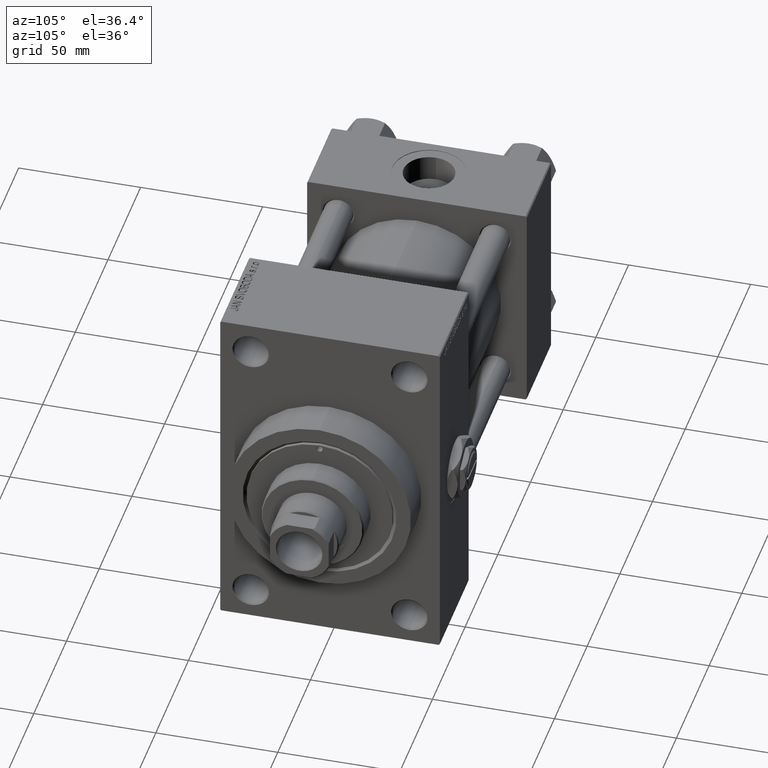
[diagram: clean part render]
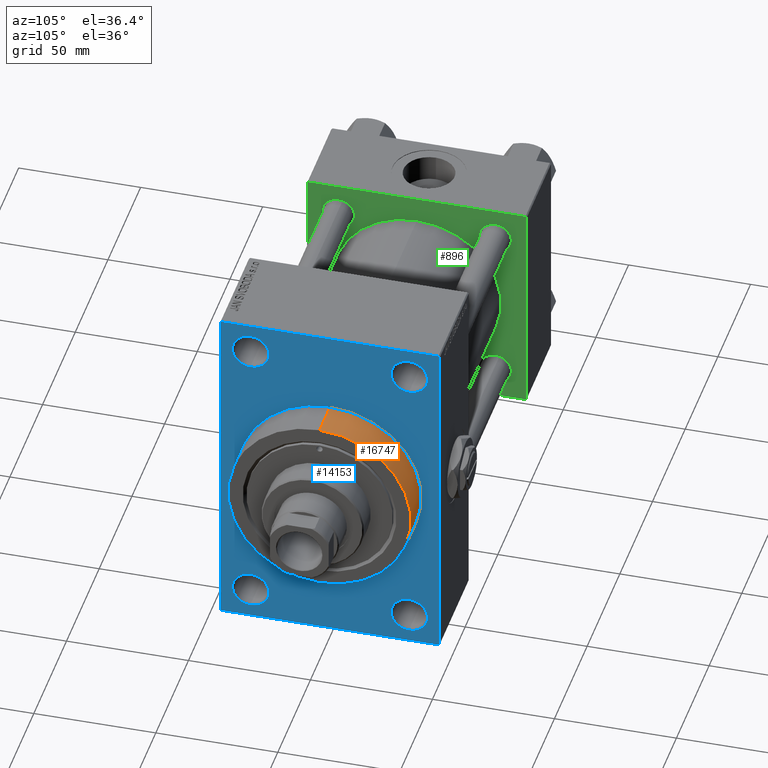
[diagram: same view with three faces highlighted in distinct colors, each labeled with its STEP entity id]
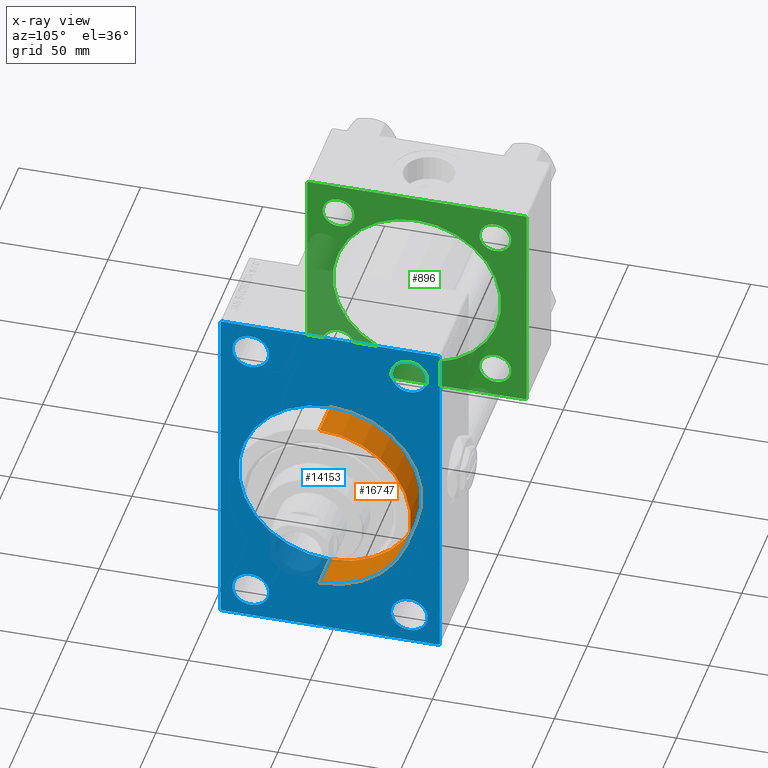
[diagram: x-ray of the same camera — body ghosted, the three highlighted faces saturated]
A machine part, auxiliary view with three faces highlighted in distinct colors.
The next image is the same camera in x-ray (body ghosted, the three faces saturated) — at least one of them is partly hidden behind the body in this view.
Their STEP definitions:

[orange] entity #16747 — the highlighted cylindrical surface (partial cylindrical patch) has radius 37.5 mm, axis along (-1, -0, -0).
#1594 = CARTESIAN_POINT ( 'NONE',  ( 186.0000000000000000, 0.000000000000000000, 37.50000000000000711 ) ) ;
#3518 = VECTOR ( 'NONE', #7805, 1000.000000000000000 ) ;
#4302 = CARTESIAN_POINT ( 'NONE',  ( 186.0000000000000000, 0.000000000000000000, 37.50000000000000711 ) ) ;
#7526 = DIRECTION ( 'NONE',  ( -1.000000000000000000, -0.000000000000000000, -0.000000000000000000 ) ) ;
#7805 = DIRECTION ( 'NONE',  ( -1.000000000000000000, -0.000000000000000000, -0.000000000000000000 ) ) ;
#10806 = AXIS2_PLACEMENT_3D ( 'NONE', #41108, #44589, #28939 ) ;
#10982 = EDGE_LOOP ( 'NONE', ( #14480, #31334, #36711, #32151 ) ) ;
#12682 = CARTESIAN_POINT ( 'NONE',  ( 169.9999999999999716, 4.592425496802575156E-15, -37.50000000000000711 ) ) ;
#14480 = ORIENTED_EDGE ( 'NONE', *, *, #37496, .F. ) ;
#14580 = VERTEX_POINT ( 'NONE', #25799 ) ;
#14995 = CARTESIAN_POINT ( 'NONE',  ( 186.0000000000000000, 4.592425496802575156E-15, -37.50000000000000711 ) ) ;
#15020 = CARTESIAN_POINT ( 'NONE',  ( 169.9999999999999716, 0.000000000000000000, 37.50000000000000711 ) ) ;
#15398 = EDGE_CURVE ( 'NONE', #38721, #15446, #41361, .T. ) ;
#15446 = VERTEX_POINT ( 'NONE', #15020 ) ;
#16747 = ADVANCED_FACE ( 'NONE', ( #48941 ), #29811, .T. ) ;
#18733 = LINE ( 'NONE', #14995, #48810 ) ;
#20552 = EDGE_CURVE ( 'NONE', #14580, #35700, #18733, .T. ) ;
#24240 = AXIS2_PLACEMENT_3D ( 'NONE', #26355, #25857, #41737 ) ;
#25799 = CARTESIAN_POINT ( 'NONE',  ( 186.0000000000000000, 4.592425496802575156E-15, -37.50000000000000711 ) ) ;
#25857 = DIRECTION ( 'NONE',  ( -1.000000000000000000, -0.000000000000000000, -0.000000000000000000 ) ) ;
#26232 = CARTESIAN_POINT ( 'NONE',  ( 186.0000000000000000, 0.000000000000000000, 0.000000000000000000 ) ) ;
#26355 = CARTESIAN_POINT ( 'NONE',  ( 186.0000000000000000, 0.000000000000000000, 0.000000000000000000 ) ) ;
#28939 = DIRECTION ( 'NONE',  ( 0.000000000000000000, 0.000000000000000000, -1.000000000000000000 ) ) ;
#29811 = CYLINDRICAL_SURFACE ( 'NONE', #24240, 37.50000000000000711 ) ;
#31334 = ORIENTED_EDGE ( 'NONE', *, *, #20552, .T. ) ;
#32151 = ORIENTED_EDGE ( 'NONE', *, *, #15398, .F. ) ;
#35700 = VERTEX_POINT ( 'NONE', #12682 ) ;
#36194 = EDGE_CURVE ( 'NONE', #35700, #15446, #48898, .T. ) ;
#36711 = ORIENTED_EDGE ( 'NONE', *, *, #36194, .T. ) ;
#37496 = EDGE_CURVE ( 'NONE', #14580, #38721, #47349, .T. ) ;
#38721 = VERTEX_POINT ( 'NONE', #1594 ) ;
#40395 = DIRECTION ( 'NONE',  ( 1.000000000000000000, 0.000000000000000000, 0.000000000000000000 ) ) ;
#41108 = CARTESIAN_POINT ( 'NONE',  ( 169.9999999999999716, 0.000000000000000000, 0.000000000000000000 ) ) ;
#41361 = LINE ( 'NONE', #4302, #3518 ) ;
#41737 = DIRECTION ( 'NONE',  ( 0.000000000000000000, 0.000000000000000000, 1.000000000000000000 ) ) ;
#42596 = AXIS2_PLACEMENT_3D ( 'NONE', #26232, #40395, #44362 ) ;
#44362 = DIRECTION ( 'NONE',  ( 0.000000000000000000, 0.000000000000000000, -1.000000000000000000 ) ) ;
#44589 = DIRECTION ( 'NONE',  ( 1.000000000000000000, 0.000000000000000000, 0.000000000000000000 ) ) ;
#47349 = CIRCLE ( 'NONE', #42596, 37.50000000000000711 ) ;
#48810 = VECTOR ( 'NONE', #7526, 1000.000000000000000 ) ;
#48898 = CIRCLE ( 'NONE', #10806, 37.50000000000000711 ) ;
#48941 = FACE_OUTER_BOUND ( 'NONE', #10982, .T. ) ;

[blue] entity #14153 — the highlighted planar face has unit normal (-1, 0, 0).
#150 = DIRECTION ( 'NONE',  ( 1.000000000000000000, 0.000000000000000000, 0.000000000000000000 ) ) ;
#515 = EDGE_CURVE ( 'NONE', #10909, #35157, #20334, .T. ) ;
#1143 = VECTOR ( 'NONE', #33789, 1000.000000000000114 ) ;
#1463 = CIRCLE ( 'NONE', #3046, 7.500000000000041744 ) ;
#2002 = DIRECTION ( 'NONE',  ( -0.000000000000000000, 0.000000000000000000, 1.000000000000000000 ) ) ;
#2286 = ORIENTED_EDGE ( 'NONE', *, *, #35646, .T. ) ;
#2487 = DIRECTION ( 'NONE',  ( -1.000000000000000000, 0.000000000000000000, -0.000000000000000000 ) ) ;
#2536 = VERTEX_POINT ( 'NONE', #10889 ) ;
#2909 = DIRECTION ( 'NONE',  ( 0.000000000000000000, 0.000000000000000000, 1.000000000000000000 ) ) ;
#3046 = AXIS2_PLACEMENT_3D ( 'NONE', #46111, #5771, #43069 ) ;
#3207 = LINE ( 'NONE', #26834, #1143 ) ;
#3877 = DIRECTION ( 'NONE',  ( 0.000000000000000000, 0.000000000000000000, 1.000000000000000000 ) ) ;
#3902 = CARTESIAN_POINT ( 'NONE',  ( 169.9999999999999716, -32.50000000000000000, -66.00000000000001421 ) ) ;
#4014 = VERTEX_POINT ( 'NONE', #8475 ) ;
#4177 = DIRECTION ( 'NONE',  ( -1.000000000000000000, 0.000000000000000000, -0.000000000000000000 ) ) ;
#4332 = ORIENTED_EDGE ( 'NONE', *, *, #43925, .T. ) ;
#4443 = EDGE_CURVE ( 'NONE', #43747, #40520, #47880, .T. ) ;
#4502 = CARTESIAN_POINT ( 'NONE',  ( 169.9999999999999716, 32.50000000000000711, -50.99999999999996447 ) ) ;
#4783 = EDGE_LOOP ( 'NONE', ( #9708, #2286 ) ) ;
#5375 = CARTESIAN_POINT ( 'NONE',  ( 169.9999999999999716, 32.50000000000000711, 50.99999999999999289 ) ) ;
#5592 = VERTEX_POINT ( 'NONE', #36191 ) ;
#5771 = DIRECTION ( 'NONE',  ( -1.000000000000000000, 0.000000000000000000, -0.000000000000000000 ) ) ;
#5974 = CARTESIAN_POINT ( 'NONE',  ( 169.9999999999999716, 0.000000000000000000, 0.000000000000000000 ) ) ;
#6666 = AXIS2_PLACEMENT_3D ( 'NONE', #25560, #10141, #13865 ) ;
#6866 = LINE ( 'NONE', #49107, #37978 ) ;
#7224 = VECTOR ( 'NONE', #39473, 1000.000000000000000 ) ;
#7236 = DIRECTION ( 'NONE',  ( 0.000000000000000000, 0.000000000000000000, 1.000000000000000000 ) ) ;
#7608 = LINE ( 'NONE', #33718, #24418 ) ;
#7954 = CARTESIAN_POINT ( 'NONE',  ( 169.9999999999999716, 44.50000000000002132, 71.00000000000000000 ) ) ;
#8144 = EDGE_CURVE ( 'NONE', #35157, #10909, #41355, .T. ) ;
#8475 = CARTESIAN_POINT ( 'NONE',  ( 169.9999999999999716, 32.50000000000000711, -66.00000000000002842 ) ) ;
#9148 = VECTOR ( 'NONE', #10624, 1000.000000000000000 ) ;
#9350 = EDGE_CURVE ( 'NONE', #34819, #17171, #40637, .T. ) ;
#9400 = VECTOR ( 'NONE', #47092, 1000.000000000000000 ) ;
#9708 = ORIENTED_EDGE ( 'NONE', *, *, #47077, .T. ) ;
#10141 = DIRECTION ( 'NONE',  ( -1.000000000000000000, 0.000000000000000000, -0.000000000000000000 ) ) ;
#10485 = AXIS2_PLACEMENT_3D ( 'NONE', #41716, #4177, #45925 ) ;
#10624 = DIRECTION ( 'NONE',  ( 0.000000000000000000, -1.000000000000000000, -1.541976423090495633E-16 ) ) ;
#10720 = DIRECTION ( 'NONE',  ( -1.000000000000000000, 0.000000000000000000, -0.000000000000000000 ) ) ;
#10770 = DIRECTION ( 'NONE',  ( 0.000000000000000000, 0.000000000000000000, 1.000000000000000000 ) ) ;
#10806 = AXIS2_PLACEMENT_3D ( 'NONE', #41108, #44589, #28939 ) ;
#10889 = CARTESIAN_POINT ( 'NONE',  ( 169.9999999999999716, -44.99999999999997158, 70.49999999999995737 ) ) ;
#10909 = VERTEX_POINT ( 'NONE', #33610 ) ;
#10977 = ORIENTED_EDGE ( 'NONE', *, *, #28739, .T. ) ;
#11096 = DIRECTION ( 'NONE',  ( 0.000000000000000000, 0.7071067811865574537, -0.7071067811865376918 ) ) ;
#11104 = VERTEX_POINT ( 'NONE', #4502 ) ;
#11528 = VERTEX_POINT ( 'NONE', #41189 ) ;
#11939 = DIRECTION ( 'NONE',  ( -1.000000000000000000, 0.000000000000000000, -0.000000000000000000 ) ) ;
#12682 = CARTESIAN_POINT ( 'NONE',  ( 169.9999999999999716, 4.592425496802575156E-15, -37.50000000000000711 ) ) ;
#13546 = LINE ( 'NONE', #47584, #9400 ) ;
#13689 = FACE_BOUND ( 'NONE', #4783, .T. ) ;
#13753 = CARTESIAN_POINT ( 'NONE',  ( 169.9999999999999716, 44.50000000000001421, -70.99999999999998579 ) ) ;
#13850 = CARTESIAN_POINT ( 'NONE',  ( 169.9999999999999716, 45.00000000000002132, 71.00000000000000000 ) ) ;
#13865 = DIRECTION ( 'NONE',  ( 0.000000000000000000, 0.000000000000000000, 1.000000000000000000 ) ) ;
#14153 = ADVANCED_FACE ( 'NONE', ( #43517, #43996, #13689, #25615, #21877, #24649 ), #39790, .F. ) ;
#14408 = EDGE_CURVE ( 'NONE', #21165, #17293, #19391, .T. ) ;
#14782 = ORIENTED_EDGE ( 'NONE', *, *, #14408, .T. ) ;
#15020 = CARTESIAN_POINT ( 'NONE',  ( 169.9999999999999716, 0.000000000000000000, 37.50000000000000711 ) ) ;
#15068 = CARTESIAN_POINT ( 'NONE',  ( 169.9999999999999716, -32.50000000000000000, -50.99999999999995737 ) ) ;
#15446 = VERTEX_POINT ( 'NONE', #15020 ) ;
#16057 = EDGE_CURVE ( 'NONE', #5592, #2536, #3207, .T. ) ;
#16426 = ORIENTED_EDGE ( 'NONE', *, *, #43675, .T. ) ;
#17101 = EDGE_CURVE ( 'NONE', #34102, #11528, #33495, .T. ) ;
#17171 = VERTEX_POINT ( 'NONE', #3902 ) ;
#17293 = VERTEX_POINT ( 'NONE', #5375 ) ;
#17359 = DIRECTION ( 'NONE',  ( -1.000000000000000000, 0.000000000000000000, -0.000000000000000000 ) ) ;
#18083 = AXIS2_PLACEMENT_3D ( 'NONE', #41161, #19292, #3877 ) ;
#18322 = CARTESIAN_POINT ( 'NONE',  ( 169.9999999999999716, 0.000000000000000000, 0.000000000000000000 ) ) ;
#18853 = ORIENTED_EDGE ( 'NONE', *, *, #515, .T. ) ;
#19292 = DIRECTION ( 'NONE',  ( -1.000000000000000000, 0.000000000000000000, -0.000000000000000000 ) ) ;
#19391 = CIRCLE ( 'NONE', #6666, 7.500000000000020428 ) ;
#19410 = ORIENTED_EDGE ( 'NONE', *, *, #9350, .T. ) ;
#20334 = CIRCLE ( 'NONE', #33023, 7.500000000000020428 ) ;
#20545 = ORIENTED_EDGE ( 'NONE', *, *, #36194, .F. ) ;
#20643 = LINE ( 'NONE', #39523, #25352 ) ;
#20981 = CARTESIAN_POINT ( 'NONE',  ( 169.9999999999999716, 45.00000000000001421, -70.49999999999997158 ) ) ;
#21165 = VERTEX_POINT ( 'NONE', #42418 ) ;
#21266 = AXIS2_PLACEMENT_3D ( 'NONE', #18322, #150, #34221 ) ;
#21877 = FACE_BOUND ( 'NONE', #31891, .T. ) ;
#22810 = EDGE_LOOP ( 'NONE', ( #16426, #14782 ) ) ;
#22971 = CARTESIAN_POINT ( 'NONE',  ( 169.9999999999999716, -32.50000000000000000, 50.99999999999999289 ) ) ;
#23814 = AXIS2_PLACEMENT_3D ( 'NONE', #29167, #37364, #10770 ) ;
#24418 = VECTOR ( 'NONE', #11096, 999.9999999999998863 ) ;
#24649 = FACE_OUTER_BOUND ( 'NONE', #30167, .T. ) ;
#25155 = EDGE_CURVE ( 'NONE', #34219, #11528, #7608, .T. ) ;
#25161 = VECTOR ( 'NONE', #47123, 1000.000000000000114 ) ;
#25352 = VECTOR ( 'NONE', #43002, 1000.000000000000000 ) ;
#25362 = CIRCLE ( 'NONE', #23814, 7.500000000000034639 ) ;
#25560 = CARTESIAN_POINT ( 'NONE',  ( 169.9999999999999716, 32.50000000000000711, 58.50000000000000711 ) ) ;
#25615 = FACE_BOUND ( 'NONE', #22810, .T. ) ;
#26154 = ORIENTED_EDGE ( 'NONE', *, *, #4443, .F. ) ;
#26166 = ORIENTED_EDGE ( 'NONE', *, *, #16057, .T. ) ;
#26236 = EDGE_CURVE ( 'NONE', #15446, #35700, #34758, .T. ) ;
#26834 = CARTESIAN_POINT ( 'NONE',  ( 169.9999999999999716, -44.99999999999997158, 70.49999999999995737 ) ) ;
#27113 = DIRECTION ( 'NONE',  ( 0.000000000000000000, 0.000000000000000000, 1.000000000000000000 ) ) ;
#27361 = CARTESIAN_POINT ( 'NONE',  ( 169.9999999999999716, -44.99999999999997158, -70.49999999999998579 ) ) ;
#27505 = ORIENTED_EDGE ( 'NONE', *, *, #17101, .F. ) ;
#27579 = ORIENTED_EDGE ( 'NONE', *, *, #28569, .T. ) ;
#28569 = EDGE_CURVE ( 'NONE', #34102, #40520, #6866, .T. ) ;
#28739 = EDGE_CURVE ( 'NONE', #17171, #34819, #1463, .T. ) ;
#28939 = DIRECTION ( 'NONE',  ( 0.000000000000000000, 0.000000000000000000, -1.000000000000000000 ) ) ;
#28998 = EDGE_CURVE ( 'NONE', #2536, #34219, #20643, .T. ) ;
#29167 = CARTESIAN_POINT ( 'NONE',  ( 169.9999999999999716, 32.50000000000000711, -58.50000000000000000 ) ) ;
#30167 = EDGE_LOOP ( 'NONE', ( #36346, #34348, #27505, #27579, #26154, #41748, #4332, #26166 ) ) ;
#31891 = EDGE_LOOP ( 'NONE', ( #42751, #20545 ) ) ;
#33023 = AXIS2_PLACEMENT_3D ( 'NONE', #47657, #17359, #2909 ) ;
#33495 = LINE ( 'NONE', #37468, #9148 ) ;
#33610 = CARTESIAN_POINT ( 'NONE',  ( 169.9999999999999716, -32.50000000000000000, 66.00000000000002842 ) ) ;
#33718 = CARTESIAN_POINT ( 'NONE',  ( 169.9999999999999716, -44.49999999999994316, -71.00000000000000000 ) ) ;
#33789 = DIRECTION ( 'NONE',  ( -0.000000000000000000, -0.7071067811865425767, -0.7071067811865524577 ) ) ;
#34102 = VERTEX_POINT ( 'NONE', #13753 ) ;
#34219 = VERTEX_POINT ( 'NONE', #27361 ) ;
#34221 = DIRECTION ( 'NONE',  ( 0.000000000000000000, 0.000000000000000000, -1.000000000000000000 ) ) ;
#34348 = ORIENTED_EDGE ( 'NONE', *, *, #25155, .T. ) ;
#34758 = CIRCLE ( 'NONE', #21266, 37.50000000000000711 ) ;
#34819 = VERTEX_POINT ( 'NONE', #15068 ) ;
#35019 = AXIS2_PLACEMENT_3D ( 'NONE', #45976, #11939, #27113 ) ;
#35157 = VERTEX_POINT ( 'NONE', #22971 ) ;
#35548 = CIRCLE ( 'NONE', #18083, 7.500000000000020428 ) ;
#35646 = EDGE_CURVE ( 'NONE', #11104, #4014, #38589, .T. ) ;
#35700 = VERTEX_POINT ( 'NONE', #12682 ) ;
#36037 = AXIS2_PLACEMENT_3D ( 'NONE', #5974, #2487, #2002 ) ;
#36191 = CARTESIAN_POINT ( 'NONE',  ( 169.9999999999999716, -44.49999999999992184, 70.99999999999998579 ) ) ;
#36194 = EDGE_CURVE ( 'NONE', #35700, #15446, #48898, .T. ) ;
#36346 = ORIENTED_EDGE ( 'NONE', *, *, #28998, .T. ) ;
#37364 = DIRECTION ( 'NONE',  ( -1.000000000000000000, 0.000000000000000000, -0.000000000000000000 ) ) ;
#37468 = CARTESIAN_POINT ( 'NONE',  ( 169.9999999999999716, 45.00000000000001421, -70.99999999999998579 ) ) ;
#37777 = AXIS2_PLACEMENT_3D ( 'NONE', #41777, #10720, #7236 ) ;
#37978 = VECTOR ( 'NONE', #45623, 999.9999999999998863 ) ;
#38297 = EDGE_CURVE ( 'NONE', #43747, #40901, #39678, .T. ) ;
#38589 = CIRCLE ( 'NONE', #37777, 7.500000000000034639 ) ;
#39473 = DIRECTION ( 'NONE',  ( 0.000000000000000000, -4.886545002751570165E-17, -1.000000000000000000 ) ) ;
#39523 = CARTESIAN_POINT ( 'NONE',  ( 169.9999999999999716, -44.99999999999997158, 70.99999999999998579 ) ) ;
#39678 = LINE ( 'NONE', #47375, #25161 ) ;
#39790 = PLANE ( 'NONE',  #36037 ) ;
#40520 = VERTEX_POINT ( 'NONE', #20981 ) ;
#40637 = CIRCLE ( 'NONE', #10485, 7.500000000000041744 ) ;
#40901 = VERTEX_POINT ( 'NONE', #7954 ) ;
#41108 = CARTESIAN_POINT ( 'NONE',  ( 169.9999999999999716, 0.000000000000000000, 0.000000000000000000 ) ) ;
#41161 = CARTESIAN_POINT ( 'NONE',  ( 169.9999999999999716, 32.50000000000000711, 58.50000000000000711 ) ) ;
#41189 = CARTESIAN_POINT ( 'NONE',  ( 169.9999999999999716, -44.49999999999991473, -71.00000000000000000 ) ) ;
#41355 = CIRCLE ( 'NONE', #35019, 7.500000000000020428 ) ;
#41716 = CARTESIAN_POINT ( 'NONE',  ( 169.9999999999999716, -32.50000000000000000, -58.49999999999999289 ) ) ;
#41748 = ORIENTED_EDGE ( 'NONE', *, *, #38297, .T. ) ;
#41777 = CARTESIAN_POINT ( 'NONE',  ( 169.9999999999999716, 32.50000000000000711, -58.50000000000000000 ) ) ;
#42418 = CARTESIAN_POINT ( 'NONE',  ( 169.9999999999999716, 32.50000000000000711, 66.00000000000002842 ) ) ;
#42751 = ORIENTED_EDGE ( 'NONE', *, *, #26236, .F. ) ;
#43002 = DIRECTION ( 'NONE',  ( 0.000000000000000000, 0.000000000000000000, -1.000000000000000000 ) ) ;
#43069 = DIRECTION ( 'NONE',  ( 0.000000000000000000, 0.000000000000000000, 1.000000000000000000 ) ) ;
#43517 = FACE_BOUND ( 'NONE', #48256, .T. ) ;
#43675 = EDGE_CURVE ( 'NONE', #17293, #21165, #35548, .T. ) ;
#43747 = VERTEX_POINT ( 'NONE', #48602 ) ;
#43925 = EDGE_CURVE ( 'NONE', #40901, #5592, #13546, .T. ) ;
#43996 = FACE_BOUND ( 'NONE', #48370, .T. ) ;
#44589 = DIRECTION ( 'NONE',  ( 1.000000000000000000, 0.000000000000000000, 0.000000000000000000 ) ) ;
#45623 = DIRECTION ( 'NONE',  ( -0.000000000000000000, 0.7071067811865376918, 0.7071067811865574537 ) ) ;
#45925 = DIRECTION ( 'NONE',  ( 0.000000000000000000, 0.000000000000000000, 1.000000000000000000 ) ) ;
#45976 = CARTESIAN_POINT ( 'NONE',  ( 169.9999999999999716, -32.50000000000000000, 58.50000000000000711 ) ) ;
#46111 = CARTESIAN_POINT ( 'NONE',  ( 169.9999999999999716, -32.50000000000000000, -58.49999999999999289 ) ) ;
#47077 = EDGE_CURVE ( 'NONE', #4014, #11104, #25362, .T. ) ;
#47092 = DIRECTION ( 'NONE',  ( 0.000000000000000000, -1.000000000000000000, -1.541976423090495387E-16 ) ) ;
#47123 = DIRECTION ( 'NONE',  ( 0.000000000000000000, -0.7071067811865474617, 0.7071067811865474617 ) ) ;
#47375 = CARTESIAN_POINT ( 'NONE',  ( 169.9999999999999716, 44.50000000000002132, 71.00000000000000000 ) ) ;
#47584 = CARTESIAN_POINT ( 'NONE',  ( 169.9999999999999716, 45.00000000000002132, 71.00000000000000000 ) ) ;
#47657 = CARTESIAN_POINT ( 'NONE',  ( 169.9999999999999716, -32.50000000000000000, 58.50000000000000711 ) ) ;
#47880 = LINE ( 'NONE', #13850, #7224 ) ;
#48256 = EDGE_LOOP ( 'NONE', ( #48735, #18853 ) ) ;
#48370 = EDGE_LOOP ( 'NONE', ( #10977, #19410 ) ) ;
#48602 = CARTESIAN_POINT ( 'NONE',  ( 169.9999999999999716, 45.00000000000002132, 70.50000000000000000 ) ) ;
#48735 = ORIENTED_EDGE ( 'NONE', *, *, #8144, .T. ) ;
#48898 = CIRCLE ( 'NONE', #10806, 37.50000000000000711 ) ;
#49107 = CARTESIAN_POINT ( 'NONE',  ( 169.9999999999999716, 45.00000000000001421, -70.49999999999997158 ) ) ;

[green] entity #896 — the highlighted planar face has unit normal (-1, 0, 0).
#36 = CARTESIAN_POINT ( 'NONE',  ( 37.00000000000000711, -2.602085213965210642E-15, 34.50000000000000000 ) ) ;
#266 = EDGE_CURVE ( 'NONE', #19848, #4124, #39388, .T. ) ;
#269 = DIRECTION ( 'NONE',  ( 0.000000000000000000, 0.000000000000000000, 1.000000000000000000 ) ) ;
#333 = ORIENTED_EDGE ( 'NONE', *, *, #44271, .T. ) ;
#441 = DIRECTION ( 'NONE',  ( 0.000000000000000000, 0.000000000000000000, 1.000000000000000000 ) ) ;
#579 = DIRECTION ( 'NONE',  ( 0.000000000000000000, 0.000000000000000000, 1.000000000000000000 ) ) ;
#770 = ORIENTED_EDGE ( 'NONE', *, *, #43343, .T. ) ;
#896 = ADVANCED_FACE ( 'NONE', ( #29442, #3841, #41374, #3341, #19021, #37154 ), #3095, .F. ) ;
#1146 = CARTESIAN_POINT ( 'NONE',  ( 37.00000000000000000, 44.99999999999998579, 44.50000000000001421 ) ) ;
#1720 = CARTESIAN_POINT ( 'NONE',  ( 37.00000000000000000, -32.14999999999997726, 38.65000000000001990 ) ) ;
#2372 = CARTESIAN_POINT ( 'NONE',  ( 37.00000000000000000, -44.49999999999998579, -45.00000000000000000 ) ) ;
#2466 = ORIENTED_EDGE ( 'NONE', *, *, #41389, .T. ) ;
#2481 = ORIENTED_EDGE ( 'NONE', *, *, #45562, .F. ) ;
#2760 = VECTOR ( 'NONE', #5504, 1000.000000000000000 ) ;
#2931 = EDGE_CURVE ( 'NONE', #32365, #35653, #37914, .T. ) ;
#3042 = ORIENTED_EDGE ( 'NONE', *, *, #38257, .T. ) ;
#3095 = PLANE ( 'NONE',  #27541 ) ;
#3099 = DIRECTION ( 'NONE',  ( 1.000000000000000000, -0.000000000000000000, 0.000000000000000000 ) ) ;
#3234 = DIRECTION ( 'NONE',  ( -0.000000000000000000, -0.7071067811865425767, -0.7071067811865524577 ) ) ;
#3341 = FACE_BOUND ( 'NONE', #19845, .T. ) ;
#3841 = FACE_BOUND ( 'NONE', #23041, .T. ) ;
#4124 = VERTEX_POINT ( 'NONE', #47469 ) ;
#4178 = ORIENTED_EDGE ( 'NONE', *, *, #2931, .T. ) ;
#4181 = DIRECTION ( 'NONE',  ( -1.000000000000000000, 0.000000000000000000, -0.000000000000000000 ) ) ;
#4621 = VECTOR ( 'NONE', #40318, 1000.000000000000000 ) ;
#5142 = DIRECTION ( 'NONE',  ( 0.000000000000000000, -1.000000000000000000, -1.541976423090495633E-16 ) ) ;
#5504 = DIRECTION ( 'NONE',  ( 0.000000000000000000, -1.000000000000000000, -1.541976423090495387E-16 ) ) ;
#5763 = CIRCLE ( 'NONE', #29593, 34.50000000000000000 ) ;
#6379 = EDGE_LOOP ( 'NONE', ( #2466, #770 ) ) ;
#7904 = CARTESIAN_POINT ( 'NONE',  ( 37.00000000000000000, 32.14999999999999147, -38.65000000000001279 ) ) ;
#7991 = DIRECTION ( 'NONE',  ( 1.000000000000000000, -0.000000000000000000, 0.000000000000000000 ) ) ;
#8327 = CARTESIAN_POINT ( 'NONE',  ( 37.00000000000000000, 32.14999999999999147, 38.65000000000001279 ) ) ;
#8460 = VERTEX_POINT ( 'NONE', #15616 ) ;
#10013 = DIRECTION ( 'NONE',  ( -1.000000000000000000, 0.000000000000000000, -0.000000000000000000 ) ) ;
#10064 = VECTOR ( 'NONE', #3234, 1000.000000000000114 ) ;
#10365 = CARTESIAN_POINT ( 'NONE',  ( 37.00000000000000000, -45.00000000000000711, 44.49999999999997158 ) ) ;
#10540 = ORIENTED_EDGE ( 'NONE', *, *, #45233, .T. ) ;
#10586 = CIRCLE ( 'NONE', #21698, 6.500000000000005329 ) ;
#10701 = LINE ( 'NONE', #11435, #10064 ) ;
#10810 = DIRECTION ( 'NONE',  ( -0.000000000000000000, 0.000000000000000000, 1.000000000000000000 ) ) ;
#11131 = ORIENTED_EDGE ( 'NONE', *, *, #23047, .F. ) ;
#11435 = CARTESIAN_POINT ( 'NONE',  ( 37.00000000000000000, -45.00000000000000711, 44.49999999999997158 ) ) ;
#11658 = VECTOR ( 'NONE', #17556, 1000.000000000000114 ) ;
#11786 = CARTESIAN_POINT ( 'NONE',  ( 37.00000000000000000, 32.14999999999999147, -32.15000000000000568 ) ) ;
#11787 = EDGE_CURVE ( 'NONE', #45378, #16252, #5763, .T. ) ;
#12523 = DIRECTION ( 'NONE',  ( 0.000000000000000000, 0.000000000000000000, 1.000000000000000000 ) ) ;
#12554 = DIRECTION ( 'NONE',  ( 0.000000000000000000, 0.000000000000000000, 1.000000000000000000 ) ) ;
#12850 = EDGE_CURVE ( 'NONE', #18748, #20160, #10586, .T. ) ;
#13105 = AXIS2_PLACEMENT_3D ( 'NONE', #23566, #37976, #19334 ) ;
#14002 = AXIS2_PLACEMENT_3D ( 'NONE', #45449, #4181, #441 ) ;
#14703 = ORIENTED_EDGE ( 'NONE', *, *, #36813, .T. ) ;
#14997 = VECTOR ( 'NONE', #43568, 1000.000000000000114 ) ;
#15140 = VECTOR ( 'NONE', #26739, 1000.000000000000114 ) ;
#15202 = ORIENTED_EDGE ( 'NONE', *, *, #11787, .F. ) ;
#15616 = CARTESIAN_POINT ( 'NONE',  ( 37.00000000000000000, 44.49999999999998579, 45.00000000000001421 ) ) ;
#15757 = CARTESIAN_POINT ( 'NONE',  ( 37.00000000000000000, 32.14999999999999147, 32.15000000000000568 ) ) ;
#16252 = VERTEX_POINT ( 'NONE', #27561 ) ;
#16689 = VERTEX_POINT ( 'NONE', #18154 ) ;
#17232 = VERTEX_POINT ( 'NONE', #1146 ) ;
#17308 = DIRECTION ( 'NONE',  ( 0.000000000000000000, 0.000000000000000000, 1.000000000000000000 ) ) ;
#17556 = DIRECTION ( 'NONE',  ( 0.000000000000000000, 0.7071067811865474617, -0.7071067811865474617 ) ) ;
#17585 = EDGE_LOOP ( 'NONE', ( #11131, #4178, #28046, #10540, #33565, #49119, #333, #3042 ) ) ;
#18154 = CARTESIAN_POINT ( 'NONE',  ( 37.00000000000000000, 32.14999999999999147, -25.64999999999999858 ) ) ;
#18748 = VERTEX_POINT ( 'NONE', #47180 ) ;
#18767 = CIRCLE ( 'NONE', #14002, 6.500000000000005329 ) ;
#18771 = CARTESIAN_POINT ( 'NONE',  ( 37.00000000000000000, 0.000000000000000000, 0.000000000000000000 ) ) ;
#18808 = CIRCLE ( 'NONE', #29104, 6.500000000000005329 ) ;
#19021 = FACE_BOUND ( 'NONE', #48868, .T. ) ;
#19334 = DIRECTION ( 'NONE',  ( 0.000000000000000000, 0.000000000000000000, 1.000000000000000000 ) ) ;
#19428 = EDGE_CURVE ( 'NONE', #8460, #25783, #24898, .T. ) ;
#19845 = EDGE_LOOP ( 'NONE', ( #40317, #48858 ) ) ;
#19848 = VERTEX_POINT ( 'NONE', #37483 ) ;
#19958 = EDGE_CURVE ( 'NONE', #20160, #18748, #36107, .T. ) ;
#20160 = VERTEX_POINT ( 'NONE', #8327 ) ;
#20799 = LINE ( 'NONE', #2372, #11658 ) ;
#20955 = LINE ( 'NONE', #28168, #14997 ) ;
#21445 = DIRECTION ( 'NONE',  ( 0.000000000000000000, 0.000000000000000000, 1.000000000000000000 ) ) ;
#21698 = AXIS2_PLACEMENT_3D ( 'NONE', #15757, #41362, #579 ) ;
#21792 = ORIENTED_EDGE ( 'NONE', *, *, #38336, .T. ) ;
#22791 = CARTESIAN_POINT ( 'NONE',  ( 37.00000000000000000, -45.00000000000000000, -44.49999999999995737 ) ) ;
#23041 = EDGE_LOOP ( 'NONE', ( #24197, #21792 ) ) ;
#23047 = EDGE_CURVE ( 'NONE', #32365, #33130, #35737, .T. ) ;
#23566 = CARTESIAN_POINT ( 'NONE',  ( 37.00000000000000000, 32.14999999999999147, 32.15000000000000568 ) ) ;
#24066 = LINE ( 'NONE', #47142, #31774 ) ;
#24197 = ORIENTED_EDGE ( 'NONE', *, *, #33089, .T. ) ;
#24271 = EDGE_LOOP ( 'NONE', ( #14703, #25668 ) ) ;
#24898 = LINE ( 'NONE', #39310, #2760 ) ;
#25175 = CARTESIAN_POINT ( 'NONE',  ( 37.00000000000000000, -45.00000000000000711, 45.00000000000000000 ) ) ;
#25668 = ORIENTED_EDGE ( 'NONE', *, *, #266, .T. ) ;
#25783 = VERTEX_POINT ( 'NONE', #33532 ) ;
#26039 = CIRCLE ( 'NONE', #47447, 6.500000000000005329 ) ;
#26739 = DIRECTION ( 'NONE',  ( -0.000000000000000000, 0.7071067811865474617, 0.7071067811865474617 ) ) ;
#27541 = AXIS2_PLACEMENT_3D ( 'NONE', #18771, #33930, #10810 ) ;
#27561 = CARTESIAN_POINT ( 'NONE',  ( 37.00000000000000711, 1.622946243093158675E-15, -34.50000000000000000 ) ) ;
#27784 = CARTESIAN_POINT ( 'NONE',  ( 37.00000000000000000, 44.99999999999998579, -44.99999999999998579 ) ) ;
#28046 = ORIENTED_EDGE ( 'NONE', *, *, #48971, .F. ) ;
#28168 = CARTESIAN_POINT ( 'NONE',  ( 37.00000000000000000, 44.49999999999998579, 45.00000000000001421 ) ) ;
#28338 = CIRCLE ( 'NONE', #31504, 6.500000000000005329 ) ;
#28349 = CARTESIAN_POINT ( 'NONE',  ( 37.00000000000000000, -32.14999999999997726, 25.65000000000000568 ) ) ;
#28735 = DIRECTION ( 'NONE',  ( -1.000000000000000000, 0.000000000000000000, -0.000000000000000000 ) ) ;
#29104 = AXIS2_PLACEMENT_3D ( 'NONE', #47079, #42868, #12554 ) ;
#29248 = CIRCLE ( 'NONE', #48284, 34.50000000000000000 ) ;
#29442 = FACE_BOUND ( 'NONE', #24271, .T. ) ;
#29593 = AXIS2_PLACEMENT_3D ( 'NONE', #44368, #3099, #17308 ) ;
#30156 = DIRECTION ( 'NONE',  ( 0.000000000000000000, 0.000000000000000000, 1.000000000000000000 ) ) ;
#30523 = CIRCLE ( 'NONE', #34517, 6.500000000000005329 ) ;
#31504 = AXIS2_PLACEMENT_3D ( 'NONE', #40407, #28735, #36441 ) ;
#31774 = VECTOR ( 'NONE', #43665, 1000.000000000000000 ) ;
#32207 = VERTEX_POINT ( 'NONE', #28349 ) ;
#32365 = VERTEX_POINT ( 'NONE', #40736 ) ;
#32611 = LINE ( 'NONE', #25175, #4621 ) ;
#33089 = EDGE_CURVE ( 'NONE', #48884, #16689, #30523, .T. ) ;
#33130 = VERTEX_POINT ( 'NONE', #40335 ) ;
#33155 = CARTESIAN_POINT ( 'NONE',  ( 37.00000000000000000, -32.14999999999997726, 32.15000000000001279 ) ) ;
#33532 = CARTESIAN_POINT ( 'NONE',  ( 37.00000000000000000, -44.49999999999995737, 45.00000000000000000 ) ) ;
#33565 = ORIENTED_EDGE ( 'NONE', *, *, #19428, .T. ) ;
#33930 = DIRECTION ( 'NONE',  ( -1.000000000000000000, 0.000000000000000000, -0.000000000000000000 ) ) ;
#34331 = CARTESIAN_POINT ( 'NONE',  ( 37.00000000000000000, 44.99999999999998579, -44.49999999999995737 ) ) ;
#34517 = AXIS2_PLACEMENT_3D ( 'NONE', #11786, #38861, #12523 ) ;
#34642 = AXIS2_PLACEMENT_3D ( 'NONE', #47045, #10013, #21445 ) ;
#35653 = VERTEX_POINT ( 'NONE', #34331 ) ;
#35737 = LINE ( 'NONE', #27784, #36244 ) ;
#35952 = VERTEX_POINT ( 'NONE', #22791 ) ;
#36107 = CIRCLE ( 'NONE', #13105, 6.500000000000005329 ) ;
#36244 = VECTOR ( 'NONE', #5142, 1000.000000000000000 ) ;
#36441 = DIRECTION ( 'NONE',  ( 0.000000000000000000, 0.000000000000000000, 1.000000000000000000 ) ) ;
#36813 = EDGE_CURVE ( 'NONE', #4124, #19848, #18767, .T. ) ;
#37091 = VERTEX_POINT ( 'NONE', #10365 ) ;
#37154 = FACE_OUTER_BOUND ( 'NONE', #17585, .T. ) ;
#37483 = CARTESIAN_POINT ( 'NONE',  ( 37.00000000000000000, -32.14999999999997726, -25.65000000000000568 ) ) ;
#37914 = LINE ( 'NONE', #45602, #15140 ) ;
#37976 = DIRECTION ( 'NONE',  ( -1.000000000000000000, 0.000000000000000000, -0.000000000000000000 ) ) ;
#38257 = EDGE_CURVE ( 'NONE', #35952, #33130, #20799, .T. ) ;
#38336 = EDGE_CURVE ( 'NONE', #16689, #48884, #28338, .T. ) ;
#38798 = CARTESIAN_POINT ( 'NONE',  ( 37.00000000000000711, -2.602085213965210642E-15, 0.000000000000000000 ) ) ;
#38861 = DIRECTION ( 'NONE',  ( -1.000000000000000000, 0.000000000000000000, -0.000000000000000000 ) ) ;
#39310 = CARTESIAN_POINT ( 'NONE',  ( 37.00000000000000000, 44.99999999999998579, 45.00000000000001421 ) ) ;
#39388 = CIRCLE ( 'NONE', #34642, 6.500000000000005329 ) ;
#40317 = ORIENTED_EDGE ( 'NONE', *, *, #12850, .T. ) ;
#40318 = DIRECTION ( 'NONE',  ( 0.000000000000000000, 7.709882115452476934E-17, -1.000000000000000000 ) ) ;
#40335 = CARTESIAN_POINT ( 'NONE',  ( 37.00000000000000000, -44.49999999999995737, -45.00000000000000000 ) ) ;
#40407 = CARTESIAN_POINT ( 'NONE',  ( 37.00000000000000000, 32.14999999999999147, -32.15000000000000568 ) ) ;
#40607 = DIRECTION ( 'NONE',  ( -1.000000000000000000, 0.000000000000000000, -0.000000000000000000 ) ) ;
#40736 = CARTESIAN_POINT ( 'NONE',  ( 37.00000000000000000, 44.49999999999998579, -44.99999999999998579 ) ) ;
#40953 = EDGE_CURVE ( 'NONE', #25783, #37091, #10701, .T. ) ;
#41362 = DIRECTION ( 'NONE',  ( -1.000000000000000000, 0.000000000000000000, -0.000000000000000000 ) ) ;
#41374 = FACE_BOUND ( 'NONE', #6379, .T. ) ;
#41389 = EDGE_CURVE ( 'NONE', #32207, #47516, #18808, .T. ) ;
#42868 = DIRECTION ( 'NONE',  ( -1.000000000000000000, 0.000000000000000000, -0.000000000000000000 ) ) ;
#43343 = EDGE_CURVE ( 'NONE', #47516, #32207, #26039, .T. ) ;
#43568 = DIRECTION ( 'NONE',  ( 0.000000000000000000, -0.7071067811865474617, 0.7071067811865474617 ) ) ;
#43665 = DIRECTION ( 'NONE',  ( 0.000000000000000000, 0.000000000000000000, -1.000000000000000000 ) ) ;
#44271 = EDGE_CURVE ( 'NONE', #37091, #35952, #32611, .T. ) ;
#44368 = CARTESIAN_POINT ( 'NONE',  ( 37.00000000000000711, -2.602085213965210642E-15, 0.000000000000000000 ) ) ;
#45233 = EDGE_CURVE ( 'NONE', #17232, #8460, #20955, .T. ) ;
#45378 = VERTEX_POINT ( 'NONE', #36 ) ;
#45449 = CARTESIAN_POINT ( 'NONE',  ( 37.00000000000000000, -32.14999999999997726, -32.15000000000001279 ) ) ;
#45562 = EDGE_CURVE ( 'NONE', #16252, #45378, #29248, .T. ) ;
#45602 = CARTESIAN_POINT ( 'NONE',  ( 37.00000000000000000, 44.99999999999998579, -44.49999999999998579 ) ) ;
#47045 = CARTESIAN_POINT ( 'NONE',  ( 37.00000000000000000, -32.14999999999997726, -32.15000000000001279 ) ) ;
#47079 = CARTESIAN_POINT ( 'NONE',  ( 37.00000000000000000, -32.14999999999997726, 32.15000000000001279 ) ) ;
#47142 = CARTESIAN_POINT ( 'NONE',  ( 37.00000000000000000, 44.99999999999998579, 45.00000000000001421 ) ) ;
#47180 = CARTESIAN_POINT ( 'NONE',  ( 37.00000000000000000, 32.14999999999999147, 25.64999999999999858 ) ) ;
#47447 = AXIS2_PLACEMENT_3D ( 'NONE', #33155, #40607, #30156 ) ;
#47469 = CARTESIAN_POINT ( 'NONE',  ( 37.00000000000000000, -32.14999999999997726, -38.65000000000001990 ) ) ;
#47516 = VERTEX_POINT ( 'NONE', #1720 ) ;
#48284 = AXIS2_PLACEMENT_3D ( 'NONE', #38798, #7991, #269 ) ;
#48858 = ORIENTED_EDGE ( 'NONE', *, *, #19958, .T. ) ;
#48868 = EDGE_LOOP ( 'NONE', ( #15202, #2481 ) ) ;
#48884 = VERTEX_POINT ( 'NONE', #7904 ) ;
#48971 = EDGE_CURVE ( 'NONE', #17232, #35653, #24066, .T. ) ;
#49119 = ORIENTED_EDGE ( 'NONE', *, *, #40953, .T. ) ;